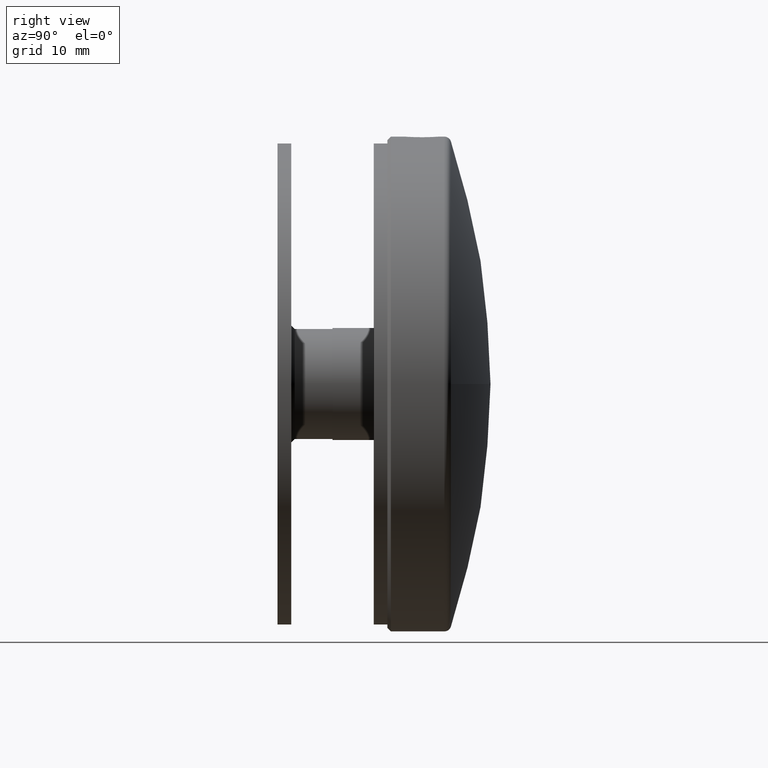
[diagram: clean part render]
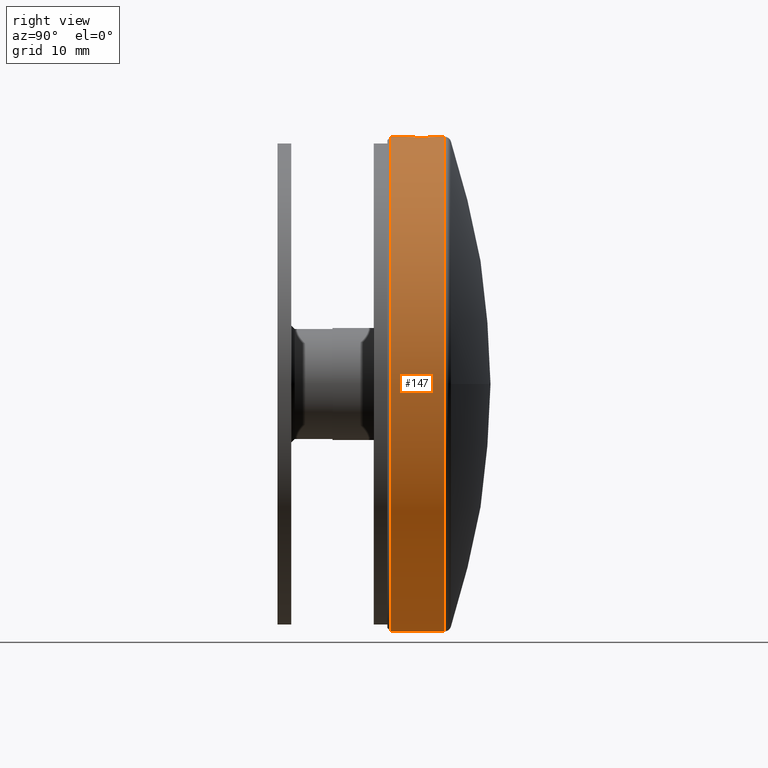
[diagram: same view with one face highlighted and labeled with its STEP entity id]
A machine part, right view. The second image highlights one B-rep face of the part: STEP entity #147.
In plain terms, the highlighted cylindrical surface (partial cylindrical patch) has radius 36 mm, axis along (-0, -1, -0).
Its self-contained STEP definition (entity closure, byte-faithful):
#39 = CYLINDRICAL_SURFACE ( 'NONE', #7267, 36.00000000000000711 ) ;
#147 = ADVANCED_FACE ( 'NONE', ( #2886 ), #39, .T. ) ;
#194 = B_SPLINE_CURVE_WITH_KNOTS ( 'NONE', 3,
 ( #3444, #3401, #4559, #12586, #5751, #9174, #13743, #3167, #915, #8648, #14780, #2169, #11205, #14364, #10197, #12351, #14678, #3322 ),
 .UNSPECIFIED., .F., .F.,
 ( 4, 2, 2, 2, 2, 2, 2, 2, 4 ),
 ( 0.000000000000000000, 0.0004887675614798149852, 0.0009775351229596299703, 0.001466302684439444847, 0.001955070245919259941, 0.002443837807399075034, 0.002932605368878890562, 0.003421372930358706089, 0.003910140491838521616 ),
 .UNSPECIFIED. ) ;
#218 = CARTESIAN_POINT ( 'NONE',  ( 2.168569099366191466, 3.745313039599746929, 35.93474187840207890 ) ) ;
#312 = CARTESIAN_POINT ( 'NONE',  ( 4.408728477081775166E-15, 2.500000000000005773, 36.00000000000000711 ) ) ;
#600 = ORIENTED_EDGE ( 'NONE', *, *, #14023, .T. ) ;
#647 = CIRCLE ( 'NONE', #9128, 36.00000000000000711 ) ;
#738 = VECTOR ( 'NONE', #1363, 1000.000000000000000 ) ;
#861 = CARTESIAN_POINT ( 'NONE',  ( 4.408728476930471644E-15, 8.283268073071045734, 36.00000000000000711 ) ) ;
#915 = CARTESIAN_POINT ( 'NONE',  ( 1.882484714248133129, 6.653132995970461927, 35.95093311496936650 ) ) ;
#921 = LINE ( 'NONE', #12817, #738 ) ;
#987 = VERTEX_POINT ( 'NONE', #861 ) ;
#1334 = EDGE_LOOP ( 'NONE', ( #600, #8033, #4717, #3324, #9617, #1875, #1683 ) ) ;
#1363 = DIRECTION ( 'NONE',  ( -0.000000000000000000, -1.000000000000000000, -0.000000000000000000 ) ) ;
#1412 = DIRECTION ( 'NONE',  ( 0.000000000000000000, 0.000000000000000000, -1.000000000000000000 ) ) ;
#1451 = CARTESIAN_POINT ( 'NONE',  ( 2.433629761848767448, 4.341706095475305283, 35.91786587470677716 ) ) ;
#1503 = CARTESIAN_POINT ( 'NONE',  ( 1.985944321262599788, 3.472598134029830419, 35.94529720226214664 ) ) ;
#1683 = ORIENTED_EDGE ( 'NONE', *, *, #13537, .F. ) ;
#1875 = ORIENTED_EDGE ( 'NONE', *, *, #8942, .T. ) ;
#1883 = EDGE_CURVE ( 'NONE', #11008, #7950, #194, .T. ) ;
#2137 = CARTESIAN_POINT ( 'NONE',  ( 4.408728476930471644E-15, 0.000000000000000000, 36.00000000000000711 ) ) ;
#2169 = CARTESIAN_POINT ( 'NONE',  ( 1.252432361829602936, 7.169896812676905817, 35.97846761039829744 ) ) ;
#2256 = VERTEX_POINT ( 'NONE', #7570 ) ;
#2269 = EDGE_CURVE ( 'NONE', #987, #7950, #5602, .T. ) ;
#2660 = CARTESIAN_POINT ( 'NONE',  ( 2.246409149487826884, 3.890891302116890049, 35.92989780998399851 ) ) ;
#2886 = FACE_OUTER_BOUND ( 'NONE', #1334, .T. ) ;
#3167 = CARTESIAN_POINT ( 'NONE',  ( 1.988113903495127399, 6.524502631310595824, 35.94517588952938070 ) ) ;
#3322 = CARTESIAN_POINT ( 'NONE',  ( 4.408728521376314994E-15, 7.499999999999994671, 36.00000000000000711 ) ) ;
#3324 = ORIENTED_EDGE ( 'NONE', *, *, #10782, .F. ) ;
#3401 = CARTESIAN_POINT ( 'NONE',  ( 2.499999999999994671, 5.165272147065594233, 35.91308953571108020 ) ) ;
#3444 = CARTESIAN_POINT ( 'NONE',  ( 2.499999999999994227, 5.000000000000000000, 35.91308953571107310 ) ) ;
#3760 = CARTESIAN_POINT ( 'NONE',  ( 0.3277163094735186522, 2.516232237394314009, 35.99886247907269166 ) ) ;
#3789 = VECTOR ( 'NONE', #8109, 1000.000000000000000 ) ;
#4257 = CARTESIAN_POINT ( 'NONE',  ( 4.408728476930471644E-15, 0.5000000000000281997, 36.00000000000000711 ) ) ;
#4547 = DIRECTION ( 'NONE',  ( -0.000000000000000000, -1.000000000000000000, -0.000000000000000000 ) ) ;
#4559 = CARTESIAN_POINT ( 'NONE',  ( 2.483772441538111053, 5.327771580780264138, 35.91422962519832396 ) ) ;
#4717 = ORIENTED_EDGE ( 'NONE', *, *, #1883, .F. ) ;
#4875 = DIRECTION ( 'NONE',  ( 0.000000000000000000, 0.000000000000000000, -1.000000000000000000 ) ) ;
#5602 = LINE ( 'NONE', #2137, #9151 ) ;
#5751 = CARTESIAN_POINT ( 'NONE',  ( 2.372076657494690100, 5.806299590327877347, 35.92182082478760208 ) ) ;
#5971 = CARTESIAN_POINT ( 'NONE',  ( 1.108355645633868347, 2.753133922673264955, 35.98325288147759693 ) ) ;
#6020 = CARTESIAN_POINT ( 'NONE',  ( 1.651935701471120455, 3.116472053015424848, 35.96226401620881319 ) ) ;
#6034 = VERTEX_POINT ( 'NONE', #4257 ) ;
#6156 = LINE ( 'NONE', #6960, #3789 ) ;
#6960 = CARTESIAN_POINT ( 'NONE',  ( 0.000000000000000000, 0.000000000000000000, -36.00000000000000711 ) ) ;
#7252 = CARTESIAN_POINT ( 'NONE',  ( 1.523321630836188767, 3.011001512690791415, 35.96801274031731310 ) ) ;
#7267 = AXIS2_PLACEMENT_3D ( 'NONE', #13868, #13969, #9397 ) ;
#7570 = CARTESIAN_POINT ( 'NONE',  ( 0.000000000000000000, 8.283268073071045734, -36.00000000000000711 ) ) ;
#7950 = VERTEX_POINT ( 'NONE', #10234 ) ;
#8033 = ORIENTED_EDGE ( 'NONE', *, *, #2269, .T. ) ;
#8109 = DIRECTION ( 'NONE',  ( -0.000000000000000000, -1.000000000000000000, -0.000000000000000000 ) ) ;
#8247 = CARTESIAN_POINT ( 'NONE',  ( 2.499999999999994227, 5.000000000000000000, 35.91308953571107310 ) ) ;
#8299 = CARTESIAN_POINT ( 'NONE',  ( 0.8055424353054391196, 2.627667647319987587, 35.99130508267928263 ) ) ;
#8648 = CARTESIAN_POINT ( 'NONE',  ( 1.651760703819995069, 6.883688928422159847, 35.96227227406097882 ) ) ;
#8942 = EDGE_CURVE ( 'NONE', #6034, #10597, #647, .T. ) ;
#9028 = B_SPLINE_CURVE_WITH_KNOTS ( 'NONE', 3,
 ( #312, #11707, #3760, #10735, #8299, #5971, #13002, #7252, #6020, #9436, #1503, #218, #2660, #1451, #12953, #8247 ),
 .UNSPECIFIED., .F., .F.,
 ( 4, 2, 2, 2, 2, 2, 2, 4 ),
 ( 0.01172883034494133503, 0.01221712467554614094, 0.01270541900615094685, 0.01319371333675575103, 0.01368200766736055694, 0.01417030199796536286, 0.01465859632857016703, 0.01563518498977977886 ),
 .UNSPECIFIED. ) ;
#9128 = AXIS2_PLACEMENT_3D ( 'NONE', #9192, #12959, #1412 ) ;
#9151 = VECTOR ( 'NONE', #4547, 1000.000000000000000 ) ;
#9174 = CARTESIAN_POINT ( 'NONE',  ( 2.246494071540569681, 6.109112746715662290, 35.92989317300718710 ) ) ;
#9192 = CARTESIAN_POINT ( 'NONE',  ( 0.000000000000000000, 0.5000000000000281997, 0.000000000000000000 ) ) ;
#9397 = DIRECTION ( 'NONE',  ( 0.000000000000000000, 0.000000000000000000, -1.000000000000000000 ) ) ;
#9436 = CARTESIAN_POINT ( 'NONE',  ( 1.882522981020823938, 3.346919144507660704, 35.95093089141406750 ) ) ;
#9617 = ORIENTED_EDGE ( 'NONE', *, *, #13239, .T. ) ;
#9743 = CARTESIAN_POINT ( 'NONE',  ( 4.408728477081775166E-15, 2.500000000000005773, 36.00000000000000711 ) ) ;
#10197 = CARTESIAN_POINT ( 'NONE',  ( 0.6482993256447587838, 7.420081111375619543, 35.99452416817793221 ) ) ;
#10234 = CARTESIAN_POINT ( 'NONE',  ( 4.408728521376314994E-15, 7.499999999999994671, 36.00000000000000711 ) ) ;
#10597 = VERTEX_POINT ( 'NONE', #12304 ) ;
#10682 = DIRECTION ( 'NONE',  ( -0.000000000000000000, -1.000000000000000000, -0.000000000000000000 ) ) ;
#10735 = CARTESIAN_POINT ( 'NONE',  ( 0.6470474432534109033, 2.579704587403963245, 35.99453885484381743 ) ) ;
#10782 = EDGE_CURVE ( 'NONE', #12679, #11008, #9028, .T. ) ;
#11008 = VERTEX_POINT ( 'NONE', #11192 ) ;
#11192 = CARTESIAN_POINT ( 'NONE',  ( 2.499999999999994227, 5.000000000000000000, 35.91308953571107310 ) ) ;
#11205 = CARTESIAN_POINT ( 'NONE',  ( 1.106925347317032182, 7.247496777567778103, 35.98329300239385731 ) ) ;
#11707 = CARTESIAN_POINT ( 'NONE',  ( 0.1649194884314347798, 2.500000000000006661, 36.00000000000001421 ) ) ;
#12304 = CARTESIAN_POINT ( 'NONE',  ( 0.000000000000000000, 0.5000000000000281997, -36.00000000000000711 ) ) ;
#12351 = CARTESIAN_POINT ( 'NONE',  ( 0.3254535902923567092, 7.484182876085077041, 35.99889084499329073 ) ) ;
#12502 = AXIS2_PLACEMENT_3D ( 'NONE', #14095, #10682, #4875 ) ;
#12586 = CARTESIAN_POINT ( 'NONE',  ( 2.420198747646445270, 5.647454841978923668, 35.91856975346745884 ) ) ;
#12679 = VERTEX_POINT ( 'NONE', #9743 ) ;
#12817 = CARTESIAN_POINT ( 'NONE',  ( 4.408728476930471644E-15, 0.000000000000000000, 36.00000000000000711 ) ) ;
#12953 = CARTESIAN_POINT ( 'NONE',  ( 2.499999999999993783, 4.669775742994571210, 35.91308953571108020 ) ) ;
#12959 = DIRECTION ( 'NONE',  ( 0.000000000000000000, 1.000000000000000000, 0.000000000000000000 ) ) ;
#13002 = CARTESIAN_POINT ( 'NONE',  ( 1.251867257478152640, 2.829872781806128224, 35.97848353736237215 ) ) ;
#13239 = EDGE_CURVE ( 'NONE', #12679, #6034, #921, .T. ) ;
#13537 = EDGE_CURVE ( 'NONE', #2256, #10597, #6156, .T. ) ;
#13743 = CARTESIAN_POINT ( 'NONE',  ( 2.169652393862858464, 6.252722497582260175, 35.93467510792716268 ) ) ;
#13868 = CARTESIAN_POINT ( 'NONE',  ( 0.000000000000000000, 0.000000000000000000, 0.000000000000000000 ) ) ;
#13969 = DIRECTION ( 'NONE',  ( -0.000000000000000000, -1.000000000000000000, -0.000000000000000000 ) ) ;
#14023 = EDGE_CURVE ( 'NONE', #2256, #987, #14386, .T. ) ;
#14095 = CARTESIAN_POINT ( 'NONE',  ( 0.000000000000000000, 8.283268073071045734, 0.000000000000000000 ) ) ;
#14364 = CARTESIAN_POINT ( 'NONE',  ( 0.8059733474903841843, 7.372115606973157931, 35.99129152981032576 ) ) ;
#14386 = CIRCLE ( 'NONE', #12502, 36.00000000000000711 ) ;
#14678 = CARTESIAN_POINT ( 'NONE',  ( 0.1631540141051772697, 7.499999999999996447, 36.00000000000001421 ) ) ;
#14780 = CARTESIAN_POINT ( 'NONE',  ( 1.525859075826418554, 6.987157034394018140, 35.96790892579322474 ) ) ;